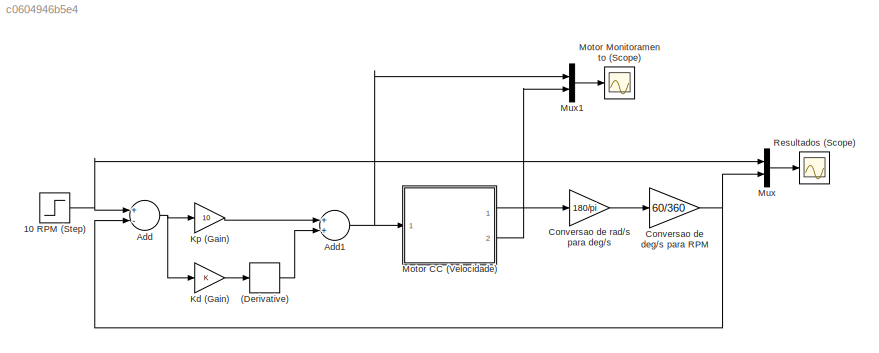
MODEL slx_c0604946b5e4
KIND model
CONFIG AbsTol = auto
CONFIG EnableMultiTasking = off
CONFIG FixedStep = auto
CONFIG MaxStep = auto
CONFIG MinStep = auto
CONFIG RelTol = 1e-3
CONFIG SampleTimeConstraint = Unconstrained
CONFIG Solver = VariableStepAuto
CONFIG SolverName = VariableStepAuto
CONFIG StartTime = 0.0
CONFIG StopTime = 5
BLOCK [Derivative] (Derivative)
BLOCK [Step] 10 RPM (Step)
  After = 10
  SampleTime = 0
BLOCK [Sum] Add
  InputSameDT = off
  Inputs = +-
  OutDataTypeStr = Inherit: Inherit via internal rule
  Ports = [2, 1]
  SaturateOnIntegerOverflow = off
BLOCK [Sum] Add1
  InputSameDT = off
  OutDataTypeStr = Inherit: Inherit via internal rule
  Ports = [2, 1]
  SaturateOnIntegerOverflow = off
BLOCK [Gain] Conversao de deg//s para RPM
  Gain = 60/360
  OutDataTypeStr = Inherit: Inherit via internal rule
  ParamDataTypeStr = Inherit: Inherit via internal rule
  SaturateOnIntegerOverflow = off
BLOCK [Gain] Conversao de rad//s para deg//s
  Gain = 180/pi
  OutDataTypeStr = Inherit: Inherit via internal rule
  ParamDataTypeStr = Inherit: Inherit via internal rule
  SaturateOnIntegerOverflow = off
BLOCK [Gain] Kd (Gain)
  OutDataTypeStr = Inherit: Inherit via internal rule
  ParamDataTypeStr = Inherit: Inherit via internal rule
  SaturateOnIntegerOverflow = off
BLOCK [Gain] Kp (Gain)
  Gain = 10
  OutDataTypeStr = Inherit: Inherit via internal rule
  ParamDataTypeStr = Inherit: Inherit via internal rule
  SaturateOnIntegerOverflow = off
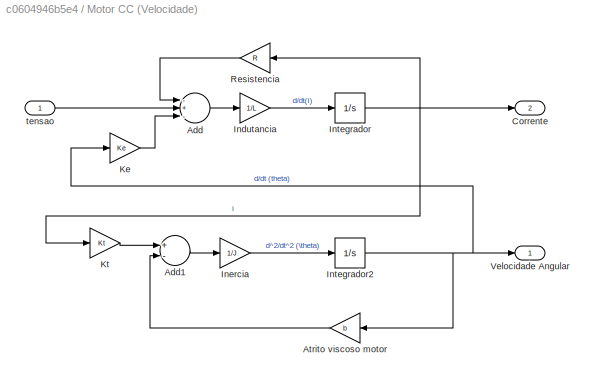
BLOCK [SubSystem] Motor CC (Velocidade)
  Ports = [1, 2]
  RequestExecContextInheritance = off
BLOCK [Sum] Motor CC (Velocidade)/Add
  InputSameDT = off
  Inputs = -+-
  OutDataTypeStr = Inherit: Inherit via internal rule
  Ports = [3, 1]
  SaturateOnIntegerOverflow = off
BLOCK [Sum] Motor CC (Velocidade)/Add1
  InputSameDT = off
  Inputs = +-
  OutDataTypeStr = Inherit: Inherit via internal rule
  Ports = [2, 1]
  SaturateOnIntegerOverflow = off
BLOCK [Gain] Motor CC (Velocidade)/Atrito viscoso motor
  Gain = b
  OutDataTypeStr = Inherit: Inherit via internal rule
  ParamDataTypeStr = Inherit: Inherit via internal rule
  SaturateOnIntegerOverflow = off
BLOCK [Outport] Motor CC (Velocidade)/Corrente
  IconDisplay = Port number
  Port = 2
  VectorParamsAs1DForOutWhenUnconnected = off
BLOCK [Gain] Motor CC (Velocidade)/Indutancia
  Gain = 1/L
  OutDataTypeStr = Inherit: Inherit via internal rule
  ParamDataTypeStr = Inherit: Inherit via internal rule
  SaturateOnIntegerOverflow = off
BLOCK [Gain] Motor CC (Velocidade)/Inercia
  Gain = 1/J
  OutDataTypeStr = Inherit: Inherit via internal rule
  ParamDataTypeStr = Inherit: Inherit via internal rule
  SaturateOnIntegerOverflow = off
BLOCK [Integrator] Motor CC (Velocidade)/Integrador
  Ports = [1, 1]
BLOCK [Integrator] Motor CC (Velocidade)/Integrador2
  Ports = [1, 1]
BLOCK [Gain] Motor CC (Velocidade)/Ke
  Gain = Ke
  OutDataTypeStr = Inherit: Inherit via internal rule
  ParamDataTypeStr = Inherit: Inherit via internal rule
  SaturateOnIntegerOverflow = off
BLOCK [Gain] Motor CC (Velocidade)/Kt
  Gain = Kt
  OutDataTypeStr = Inherit: Inherit via internal rule
  ParamDataTypeStr = Inherit: Inherit via internal rule
  SaturateOnIntegerOverflow = off
BLOCK [Gain] Motor CC (Velocidade)/Resistencia
  Gain = R
  OutDataTypeStr = Inherit: Inherit via internal rule
  ParamDataTypeStr = Inherit: Inherit via internal rule
  SaturateOnIntegerOverflow = off
BLOCK [Outport] Motor CC (Velocidade)/Velocidade Angular
  IconDisplay = Port number
  VectorParamsAs1DForOutWhenUnconnected = off
BLOCK [Inport] Motor CC (Velocidade)/tensao
  IconDisplay = Port number
BLOCK [Scope] Motor Monitoramento (Scope)
  Floating = off
  NumInputPorts = 1
  Ports = [1]
  ScopeSpecificationString = Simulink.scopes.TimeScopeBlockCfg('CurrentConfiguration', extmgr.ConfigurationSet(extmgr.Configuration('Core','General UI',true,'FigureColor',[1 1 1]),extmgr.Configuration('Core','Source UI',true),extmgr.Configuration('Sources','WiredSimulink',true,'DataLoggingVariableName','ScopeData1'),extmgr.Configuration('Visuals','Time Domain',true,'SerializedDisplays',{struct('MinYLimReal','-173215370283493....<+1903ch>
BLOCK [Mux] Mux
  DisplayOption = bar
  Inputs = 2
  Ports = [2, 1]
BLOCK [Mux] Mux1
  DisplayOption = bar
  Inputs = 2
  Ports = [2, 1]
BLOCK [Scope] Resultados (Scope)
  Floating = off
  NumInputPorts = 1
  Ports = [1]
  ScopeSpecificationString = Simulink.scopes.TimeScopeBlockCfg('CurrentConfiguration', extmgr.ConfigurationSet(extmgr.Configuration('Core','General UI',true,'FigureColor',[1 1 1]),extmgr.Configuration('Core','Source UI',true),extmgr.Configuration('Sources','WiredSimulink',true),extmgr.Configuration('Visuals','Time Domain',true,'SerializedDisplays',{struct('MinYLimReal','-1.25','MaxYLimReal','11.25','YLabelReal','','MinYLimMag...<+1732ch>
LINE (Derivative):1 -> Add1:2
NET 10 RPM (Step):1 -> Add:1, Mux:1
NET Add1:1 -> Motor CC (Velocidade):1, Mux1:1
NET Add:1 -> Kd (Gain):1, Kp (Gain):1
NET Conversao de deg//s para RPM:1 -> Add:2, Mux:2
LINE Conversao de rad//s para deg//s:1 -> Conversao de deg//s para RPM:1
LINE Kd (Gain):1 -> (Derivative):1
LINE Kp (Gain):1 -> Add1:1
LINE Motor CC (Velocidade)/Add1:1 -> Motor CC (Velocidade)/Inercia:1
LINE Motor CC (Velocidade)/Add:1 -> Motor CC (Velocidade)/Indutancia:1
LINE Motor CC (Velocidade)/Atrito viscoso motor:1 -> Motor CC (Velocidade)/Add1:2
LINE Motor CC (Velocidade)/Indutancia:1 -> Motor CC (Velocidade)/Integrador:1
LINE Motor CC (Velocidade)/Inercia:1 -> Motor CC (Velocidade)/Integrador2:1
NET Motor CC (Velocidade)/Integrador2:1 -> Motor CC (Velocidade)/Atrito viscoso motor:1, Motor CC (Velocidade)/Ke:1, Motor CC (Velocidade)/Velocidade Angular:1
NET Motor CC (Velocidade)/Integrador:1 -> Motor CC (Velocidade)/Corrente:1, Motor CC (Velocidade)/Kt:1, Motor CC (Velocidade)/Resistencia:1
LINE Motor CC (Velocidade)/Ke:1 -> Motor CC (Velocidade)/Add:3
LINE Motor CC (Velocidade)/Kt:1 -> Motor CC (Velocidade)/Add1:1
LINE Motor CC (Velocidade)/Resistencia:1 -> Motor CC (Velocidade)/Add:1
LINE Motor CC (Velocidade)/tensao:1 -> Motor CC (Velocidade)/Add:2
LINE Motor CC (Velocidade):1 -> Conversao de rad//s para deg//s:1
LINE Motor CC (Velocidade):2 -> Mux1:2
LINE Mux1:1 -> Motor Monitoramento (Scope):1
LINE Mux:1 -> Resultados (Scope):1
note: NET lines group one-source signal fan-out (src -> all destinations, sorted); 1:1 wires keep LINE
